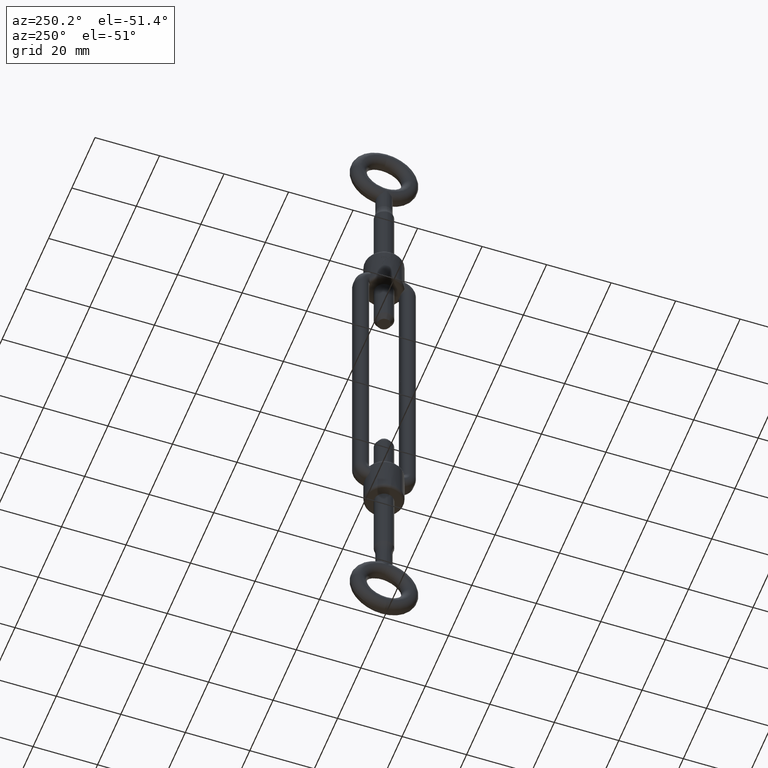
[diagram: clean part render]
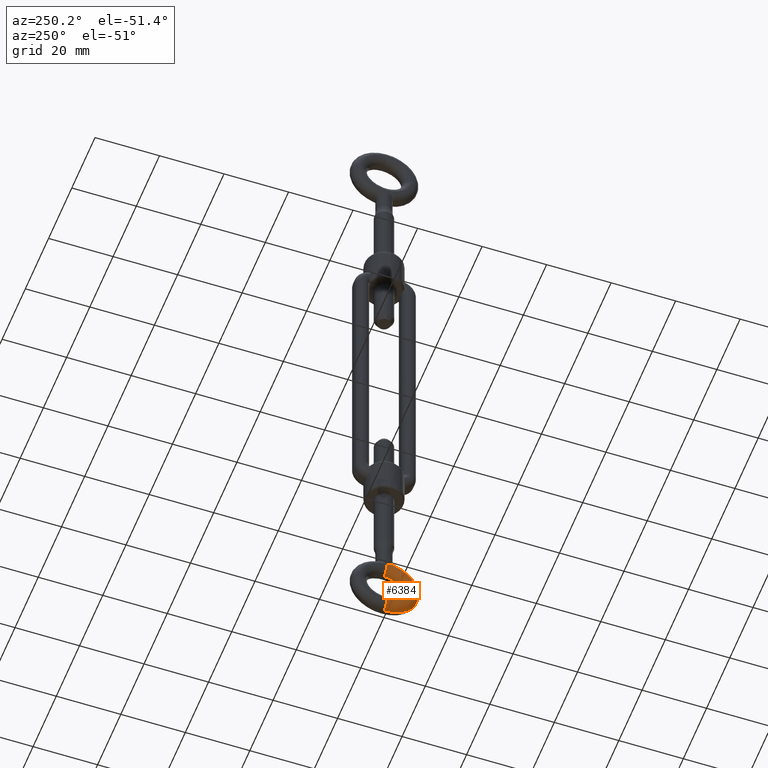
[diagram: same view with one face highlighted and labeled with its STEP entity id]
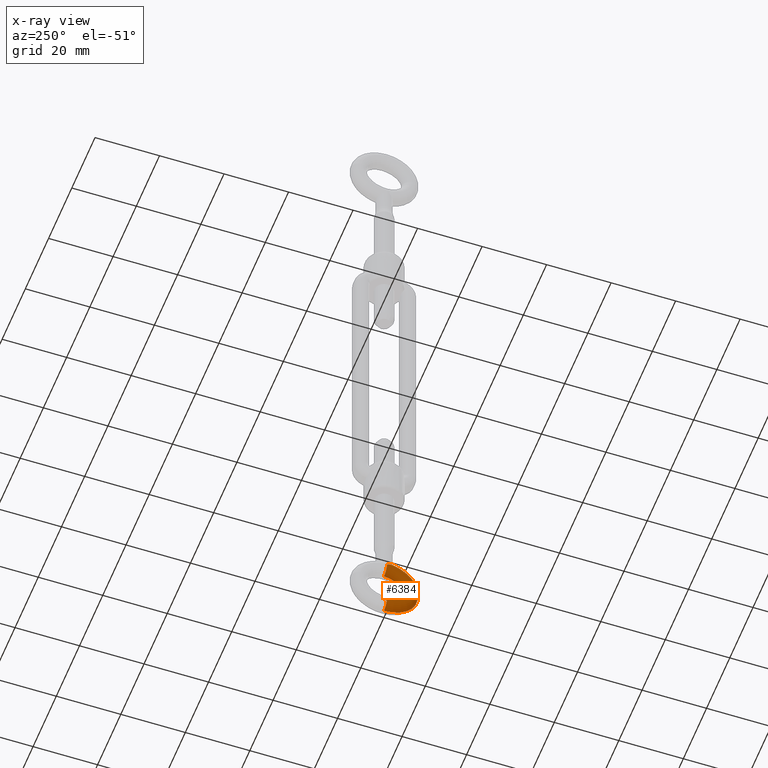
[diagram: x-ray of the same camera — body ghosted, the highlighted face saturated]
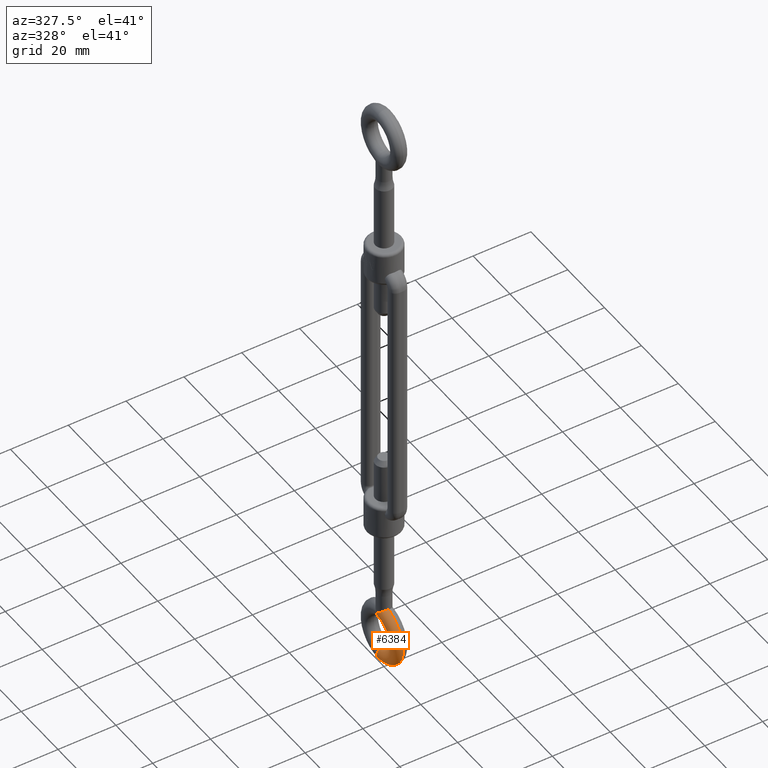
[diagram: same view with one face highlighted and labeled with its STEP entity id]
A machine part, auxiliary view. The second image highlights one B-rep face of the part: STEP entity #6384.
The next image is the same camera in x-ray: the body ghosted, the highlighted face saturated — about 0% of this face is hidden behind the body in this view.
A second angle (auxiliary view) of the same face is appended — the face is thin or edge-on in the first view.
In plain terms, the highlighted toroidal blend (fillet) surface has major radius 8 mm and minor (blend) radius 2.5 mm.
Its self-contained STEP definition (entity closure, byte-faithful):
#469 = CARTESIAN_POINT ( 'NONE',  ( 0.0000000000000000000, -10.50000000000000000, -1.138479697559672000E-015 ) ) ;
#520 = VERTEX_POINT ( 'NONE', #8134 ) ;
#1370 = VERTEX_POINT ( 'NONE', #3618 ) ;
#1703 = DIRECTION ( 'NONE',  ( -0.0000000000000000000, 1.423099621949589700E-016, -1.000000000000000000 ) ) ;
#2021 = CARTESIAN_POINT ( 'NONE',  ( 6.735557395310442000E-016, -16.00000000000000400, -8.323179977728349900E-016 ) ) ;
#2444 = CARTESIAN_POINT ( 'NONE',  ( 0.6879069293072701500, -19.16154272477144000, -2.407944886742239300 ) ) ;
#2516 = CARTESIAN_POINT ( 'NONE',  ( 2.168329388723888100, -20.43465258819122400, -1.257534258995697900 ) ) ;
#2720 = DIRECTION ( 'NONE',  ( -1.224646799147353900E-016, 1.000000000000000000, 0.0000000000000000000 ) ) ;
#2873 = CIRCLE ( 'NONE', #5161, 2.499999999999998700 ) ;
#2945 = VERTEX_POINT ( 'NONE', #3779 ) ;
#3016 = EDGE_CURVE ( 'NONE', #18958, #520, #15736, .T. ) ;
#3268 = CIRCLE ( 'NONE', #13405, 2.500000000000000000 ) ;
#3531 = EDGE_CURVE ( 'NONE', #1370, #13609, #9595, .T. ) ;
#3618 = CARTESIAN_POINT ( 'NONE',  ( 0.0000000000000000000, -5.000000000000000900, -8.323179977728334100E-016 ) ) ;
#3779 = CARTESIAN_POINT ( 'NONE',  ( 0.0000000000000000000, -2.168404344971008900E-016, 3.557749054873973800E-016 ) ) ;
#4093 = CIRCLE ( 'NONE', #12255, 10.50000000000000000 ) ;
#4103 = CARTESIAN_POINT ( 'NONE',  ( 0.9641436370088325400, -19.41303033183813700, -2.311242429558706000 ) ) ;
#4382 = DIRECTION ( 'NONE',  ( 1.000000000000000000, 1.224646799147353200E-016, 1.742794396888373400E-032 ) ) ;
#4716 = DIRECTION ( 'NONE',  ( -0.0000000000000000000, 1.423099621949589700E-016, -1.000000000000000000 ) ) ;
#4788 = ORIENTED_EDGE ( 'NONE', *, *, #19195, .T. ) ;
#5161 = AXIS2_PLACEMENT_3D ( 'NONE', #20163, #4382, #2720 ) ;
#5189 = EDGE_CURVE ( 'NONE', #18958, #13609, #2873, .T. ) ;
#5736 = DIRECTION ( 'NONE',  ( 0.0000000000000000000, 0.0000000000000000000, 1.000000000000000000 ) ) ;
#5809 = DIRECTION ( 'NONE',  ( -1.000000000000000000, 0.0000000000000000000, 0.0000000000000000000 ) ) ;
#5825 = AXIS2_PLACEMENT_3D ( 'NONE', #469, #11388, #9767 ) ;
#5879 = CARTESIAN_POINT ( 'NONE',  ( 0.0000000000000000000, -2.500000000000000400, 0.0000000000000000000 ) ) ;
#6384 = ADVANCED_FACE ( 'NONE', ( #17248 ), #13495, .T. ) ;
#6754 = AXIS2_PLACEMENT_3D ( 'NONE', #17449, #1703, #19167 ) ;
#6973 = CARTESIAN_POINT ( 'NONE',  ( 2.327437376519771600, -20.56196053723073200, -0.9306341971635987400 ) ) ;
#7572 = ORIENTED_EDGE ( 'NONE', *, *, #3016, .F. ) ;
#8134 = CARTESIAN_POINT ( 'NONE',  ( 2.500000000000000000, -20.69803902718557300, -8.499870716713327500E-015 ) ) ;
#8624 = CARTESIAN_POINT ( 'NONE',  ( 1.743475478518700500, -20.08679001296287600, -1.799101126562324000 ) ) ;
#9562 = CARTESIAN_POINT ( 'NONE',  ( 1.242455925723093600E-026, -18.50000000000000400, -2.500000000000001300 ) ) ;
#9595 = CIRCLE ( 'NONE', #6754, 5.500000000000000000 ) ;
#9767 = DIRECTION ( 'NONE',  ( 0.0000000000000000000, 1.000000000000000000, 1.423099621949589700E-016 ) ) ;
#9854 = EDGE_CURVE ( 'NONE', #2945, #1370, #3268, .T. ) ;
#10355 = CARTESIAN_POINT ( 'NONE',  ( 0.2742084280752765700, -18.77070412679008300, -2.488839975278251500 ) ) ;
#11388 = DIRECTION ( 'NONE',  ( -0.0000000000000000000, 1.423099621949589700E-016, -1.000000000000000000 ) ) ;
#11916 = CARTESIAN_POINT ( 'NONE',  ( 0.1355208675963096000, -18.63546101495888500, -2.500000000000001800 ) ) ;
#11981 = CARTESIAN_POINT ( 'NONE',  ( 0.5497783932366499000, -19.03309241690750400, -2.442797249650632300 ) ) ;
#12255 = AXIS2_PLACEMENT_3D ( 'NONE', #12511, #4716, #17219 ) ;
#12511 = CARTESIAN_POINT ( 'NONE',  ( 0.0000000000000000000, -10.50000000000000000, -1.138479697559672000E-015 ) ) ;
#13312 = ORIENTED_EDGE ( 'NONE', *, *, #3531, .F. ) ;
#13398 = CARTESIAN_POINT ( 'NONE',  ( 1.242455925723093600E-026, -18.50000000000000400, -2.500000000000001300 ) ) ;
#13404 = ORIENTED_EDGE ( 'NONE', *, *, #9854, .F. ) ;
#13405 = AXIS2_PLACEMENT_3D ( 'NONE', #5879, #5809, #5736 ) ;
#13495 = TOROIDAL_SURFACE ( 'NONE', #5825, 8.000000000000000000, 2.500000000000000000 ) ;
#13547 = CARTESIAN_POINT ( 'NONE',  ( 1.860439151219480200, -20.18372455400535200, -1.678711084573499400 ) ) ;
#13609 = VERTEX_POINT ( 'NONE', #2021 ) ;
#13612 = CARTESIAN_POINT ( 'NONE',  ( 2.071899204515263100, -20.35686979170255400, -1.409446141996640200 ) ) ;
#15013 = CARTESIAN_POINT ( 'NONE',  ( 2.500000000000038600, -20.69803902718581400, -0.1931123023462316400 ) ) ;
#15151 = CARTESIAN_POINT ( 'NONE',  ( 2.390965643791263000, -20.61220180653588600, -0.7548534697518337600 ) ) ;
#15664 = ORIENTED_EDGE ( 'NONE', *, *, #5189, .T. ) ;
#15736 = B_SPLINE_CURVE_WITH_KNOTS ( 'NONE', 3,
 ( #13398, #11916, #10355, #11981, #2444, #4103, #16746, #18317, #19703, #8624, #13547, #13612, #2516, #6973, #15151, #18256, #15013, #16486 ),
 .UNSPECIFIED., .F., .F.,
 ( 4, 2, 2, 2, 2, 2, 2, 2, 4 ),
 ( -1.000000524836036100E-005, 0.0005648391012991839200, 0.001139678207846728200, 0.001714517314394272200, 0.002289356420941816800, 0.002864195527489359900, 0.003439034634036902500, 0.004013873740584446500, 0.004588712847131990400 ),
 .UNSPECIFIED. ) ;
#16486 = CARTESIAN_POINT ( 'NONE',  ( 2.500000000000000000, -20.69803902718557300, -8.499870716713327500E-015 ) ) ;
#16746 = CARTESIAN_POINT ( 'NONE',  ( 1.101412463418430800, -19.53526663541962400, -2.249477496787962000 ) ) ;
#17219 = DIRECTION ( 'NONE',  ( 0.0000000000000000000, 1.000000000000000000, 1.423099621949589700E-016 ) ) ;
#17248 = FACE_OUTER_BOUND ( 'NONE', #19655, .T. ) ;
#17449 = CARTESIAN_POINT ( 'NONE',  ( 0.0000000000000000000, -10.50000000000000000, -8.323179977728336100E-016 ) ) ;
#18256 = CARTESIAN_POINT ( 'NONE',  ( 2.477919398303775300, -20.68076055352976900, -0.3826694736929097700 ) ) ;
#18317 = CARTESIAN_POINT ( 'NONE',  ( 1.366676921016038500, -19.76716108064862700, -2.098917010434432100 ) ) ;
#18958 = VERTEX_POINT ( 'NONE', #9562 ) ;
#19167 = DIRECTION ( 'NONE',  ( 0.0000000000000000000, 1.000000000000000000, 1.423099621949589700E-016 ) ) ;
#19195 = EDGE_CURVE ( 'NONE', #2945, #520, #4093, .T. ) ;
#19655 = EDGE_LOOP ( 'NONE', ( #13404, #4788, #7572, #15664, #13312 ) ) ;
#19703 = CARTESIAN_POINT ( 'NONE',  ( 1.495584171583372200, -19.87764799092391900, -2.009900393925805800 ) ) ;
#20163 = CARTESIAN_POINT ( 'NONE',  ( 9.797174393178825700E-016, -18.50000000000000400, -2.276959395119343900E-015 ) ) ;